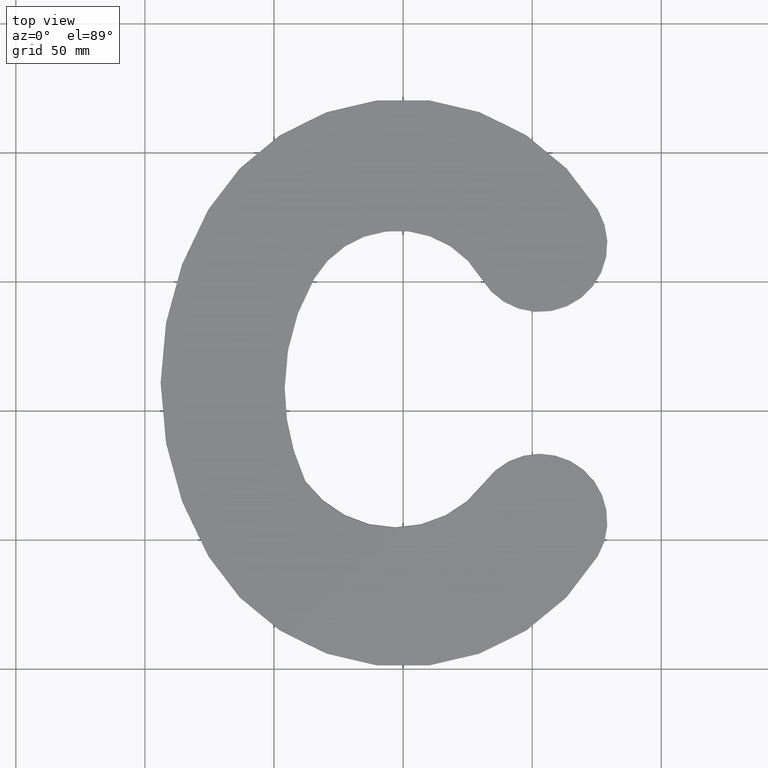
[diagram: clean part render]
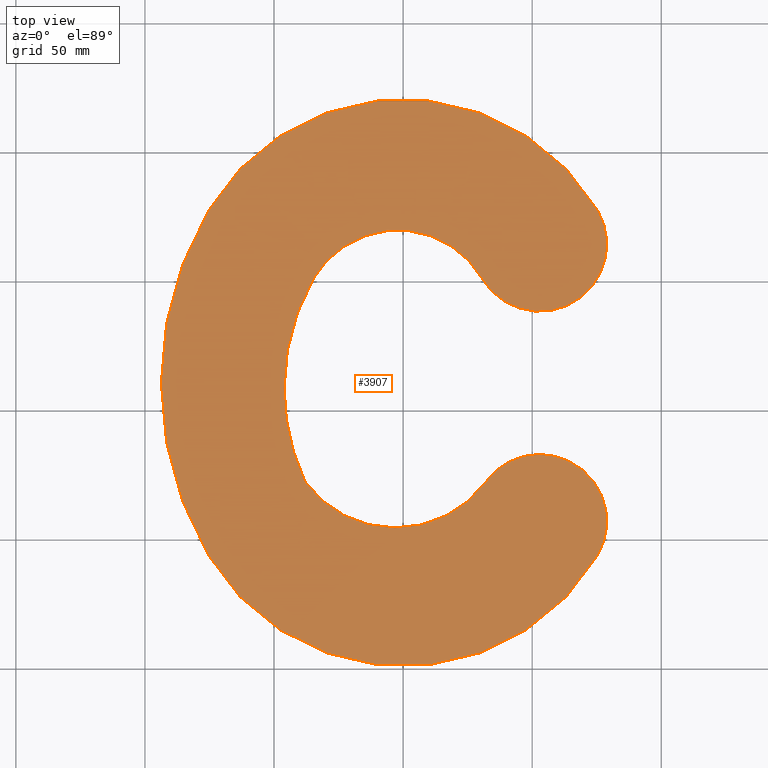
[diagram: same view with one face highlighted and labeled with its STEP entity id]
A machine part, top view. The second image highlights one B-rep face of the part: STEP entity #3907.
In plain terms, the highlighted planar face has unit normal (0, 0, -1).
Its self-contained STEP definition (entity closure, byte-faithful):
#242 = ORIENTED_EDGE ( 'NONE', *, *, #31432, .T. ) ;
#379 = VERTEX_POINT ( 'NONE', #5171 ) ;
#1008 = DIRECTION ( 'NONE',  ( -1.000000000000000000, 0.000000000000000000, 0.000000000000000000 ) ) ;
#1088 = CARTESIAN_POINT ( 'NONE',  ( 75.22679039033371851, 176.9581257782152193, 2.000000000000000000 ) ) ;
#1486 = CIRCLE ( 'NONE', #4063, 131.0189357043282996 ) ;
#1670 = CARTESIAN_POINT ( 'NONE',  ( 1.886394206557700430E-23, 132.2308783435891826, 2.000000000000000000 ) ) ;
#1741 = CIRCLE ( 'NONE', #14229, 87.51912165640983687 ) ;
#1767 = CARTESIAN_POINT ( 'NONE',  ( -2.972145870964818304, 96.94996473683926297, 2.000000000000000000 ) ) ;
#3575 = CARTESIAN_POINT ( 'NONE',  ( 38.80021723831813318, 107.9164540666654943, 2.000000000000000000 ) ) ;
#3907 = ADVANCED_FACE ( 'NONE', ( #27734 ), #18392, .F. ) ;
#4063 = AXIS2_PLACEMENT_3D ( 'NONE', #13169, #12926, #33735 ) ;
#4192 = DIRECTION ( 'NONE',  ( 0.000000000000000000, 0.000000000000000000, 1.000000000000000000 ) ) ;
#4312 = DIRECTION ( 'NONE',  ( -1.000000000000000000, 0.000000000000000000, 0.000000000000000000 ) ) ;
#4648 = DIRECTION ( 'NONE',  ( -1.000000000000000000, 9.514118203080518399E-16, 0.000000000000000000 ) ) ;
#5030 = ORIENTED_EDGE ( 'NONE', *, *, #20731, .T. ) ;
#5171 = CARTESIAN_POINT ( 'NONE',  ( 30.55105795348866593, 150.5545611256447387, 2.000000000000000000 ) ) ;
#6777 = AXIS2_PLACEMENT_3D ( 'NONE', #3575, #29973, #36237 ) ;
#7088 = VERTEX_POINT ( 'NONE', #1088 ) ;
#7469 = VERTEX_POINT ( 'NONE', #34651 ) ;
#8132 = EDGE_CURVE ( 'NONE', #28454, #16568, #1486, .T. ) ;
#8220 = CIRCLE ( 'NONE', #27320, 87.51912165640985108 ) ;
#10257 = CIRCLE ( 'NONE', #10416, 43.16518968500732711 ) ;
#10416 = AXIS2_PLACEMENT_3D ( 'NONE', #1767, #14152, #22741 ) ;
#10913 = ORIENTED_EDGE ( 'NONE', *, *, #8132, .T. ) ;
#11217 = AXIS2_PLACEMENT_3D ( 'NONE', #35628, #32816, #12101 ) ;
#11507 = EDGE_CURVE ( 'NONE', #29773, #21560, #21104, .T. ) ;
#12101 = DIRECTION ( 'NONE',  ( -1.000000000000000000, 0.000000000000000000, 0.000000000000000000 ) ) ;
#12142 = VERTEX_POINT ( 'NONE', #12395 ) ;
#12395 = CARTESIAN_POINT ( 'NONE',  ( -75.22679039033373272, 43.04187422178387123, 2.000000000000000000 ) ) ;
#12429 = DIRECTION ( 'NONE',  ( -1.000000000000000000, 0.000000000000000000, 0.000000000000000000 ) ) ;
#12894 = DIRECTION ( 'NONE',  ( -0.000000000000000000, 0.000000000000000000, -1.000000000000000000 ) ) ;
#12926 = DIRECTION ( 'NONE',  ( 0.000000000000000000, 0.000000000000000000, 1.000000000000000000 ) ) ;
#13169 = CARTESIAN_POINT ( 'NONE',  ( 37.39013065336894215, 109.9999999999995168, 2.000000000000000000 ) ) ;
#13533 = VERTEX_POINT ( 'NONE', #14988 ) ;
#14152 = DIRECTION ( 'NONE',  ( -0.000000000000000000, -0.000000000000000000, -1.000000000000000000 ) ) ;
#14200 = CARTESIAN_POINT ( 'NONE',  ( -46.12880505095913009, 107.9164540666654943, 2.000000000000000000 ) ) ;
#14229 = AXIS2_PLACEMENT_3D ( 'NONE', #18821, #4192, #4312 ) ;
#14875 = CIRCLE ( 'NONE', #11217, 84.92902228927725616 ) ;
#14988 = CARTESIAN_POINT ( 'NONE',  ( -38.09187791819754665, 71.85339083773426694, 2.000000000000000000 ) ) ;
#15442 = CARTESIAN_POINT ( 'NONE',  ( -2.049126755757200602, 131.4034222170904229, 2.000000000000000000 ) ) ;
#15681 = CIRCLE ( 'NONE', #21100, 25.94748539025162160 ) ;
#15855 = AXIS2_PLACEMENT_3D ( 'NONE', #19011, #12894, #36653 ) ;
#16209 = EDGE_CURVE ( 'NONE', #7088, #28454, #8220, .T. ) ;
#16568 = VERTEX_POINT ( 'NONE', #22155 ) ;
#16770 = CARTESIAN_POINT ( 'NONE',  ( 52.92370955878899963, 56.30251460974788102, 2.000000000000000000 ) ) ;
#17551 = ORIENTED_EDGE ( 'NONE', *, *, #36630, .T. ) ;
#17811 = ORIENTED_EDGE ( 'NONE', *, *, #16209, .T. ) ;
#18001 = DIRECTION ( 'NONE',  ( 0.000000000000000000, 0.000000000000000000, 1.000000000000000000 ) ) ;
#18392 = PLANE ( 'NONE',  #15855 ) ;
#18720 = ORIENTED_EDGE ( 'NONE', *, *, #11507, .T. ) ;
#18821 = CARTESIAN_POINT ( 'NONE',  ( 6.869576908259014508E-23, 87.76912165640986530, 2.000000000000000000 ) ) ;
#19011 = CARTESIAN_POINT ( 'NONE',  ( 26.46185477939450337, 147.9641818669201712, 2.000000000000000000 ) ) ;
#19013 = CARTESIAN_POINT ( 'NONE',  ( 31.93831302248339910, 71.56308898594139123, 2.000000000000000000 ) ) ;
#19757 = AXIS2_PLACEMENT_3D ( 'NONE', #15442, #29993, #32702 ) ;
#20275 = AXIS2_PLACEMENT_3D ( 'NONE', #35955, #24109, #12429 ) ;
#20731 = EDGE_CURVE ( 'NONE', #21560, #379, #34780, .T. ) ;
#21100 = AXIS2_PLACEMENT_3D ( 'NONE', #35399, #18001, #1008 ) ;
#21104 = CIRCLE ( 'NONE', #6777, 84.92902228927725616 ) ;
#21560 = VERTEX_POINT ( 'NONE', #37521 ) ;
#22102 = AXIS2_PLACEMENT_3D ( 'NONE', #16770, #34650, #25485 ) ;
#22155 = CARTESIAN_POINT ( 'NONE',  ( -93.62880505095935746, 109.9999999999995168, 2.000000000000000000 ) ) ;
#22629 = EDGE_LOOP ( 'NONE', ( #5030, #26306, #17811, #10913, #242, #32891, #17551, #29975, #36726, #18720 ) ) ;
#22741 = DIRECTION ( 'NONE',  ( -1.000000000000000000, 0.000000000000000000, 0.000000000000000000 ) ) ;
#23053 = EDGE_CURVE ( 'NONE', #13533, #29773, #14875, .T. ) ;
#24089 = VERTEX_POINT ( 'NONE', #19013 ) ;
#24109 = DIRECTION ( 'NONE',  ( 0.000000000000000000, 0.000000000000000000, 1.000000000000000000 ) ) ;
#24725 = EDGE_CURVE ( 'NONE', #379, #7088, #15681, .T. ) ;
#25485 = DIRECTION ( 'NONE',  ( -1.000000000000000000, 0.000000000000000000, 0.000000000000000000 ) ) ;
#26306 = ORIENTED_EDGE ( 'NONE', *, *, #24725, .T. ) ;
#27320 = AXIS2_PLACEMENT_3D ( 'NONE', #1670, #36812, #4648 ) ;
#27485 = CARTESIAN_POINT ( 'NONE',  ( -75.22679039033371851, 176.9581257782152193, 2.000000000000000000 ) ) ;
#27734 = FACE_OUTER_BOUND ( 'NONE', #22629, .T. ) ;
#28454 = VERTEX_POINT ( 'NONE', #27485 ) ;
#29773 = VERTEX_POINT ( 'NONE', #14200 ) ;
#29973 = DIRECTION ( 'NONE',  ( -0.000000000000000000, -0.000000000000000000, -1.000000000000000000 ) ) ;
#29975 = ORIENTED_EDGE ( 'NONE', *, *, #30078, .T. ) ;
#29993 = DIRECTION ( 'NONE',  ( -0.000000000000000000, -0.000000000000000000, -1.000000000000000000 ) ) ;
#30078 = EDGE_CURVE ( 'NONE', #24089, #13533, #10257, .T. ) ;
#31432 = EDGE_CURVE ( 'NONE', #16568, #12142, #33233, .T. ) ;
#32702 = DIRECTION ( 'NONE',  ( -1.000000000000000000, 0.000000000000000000, 0.000000000000000000 ) ) ;
#32816 = DIRECTION ( 'NONE',  ( -0.000000000000000000, -0.000000000000000000, -1.000000000000000000 ) ) ;
#32891 = ORIENTED_EDGE ( 'NONE', *, *, #34627, .T. ) ;
#33006 = CIRCLE ( 'NONE', #22102, 25.94748539025161449 ) ;
#33233 = CIRCLE ( 'NONE', #20275, 131.0189357043282996 ) ;
#33735 = DIRECTION ( 'NONE',  ( -1.000000000000000000, -8.473760061145723090E-16, 0.000000000000000000 ) ) ;
#34627 = EDGE_CURVE ( 'NONE', #12142, #7469, #1741, .T. ) ;
#34650 = DIRECTION ( 'NONE',  ( 0.000000000000000000, 0.000000000000000000, 1.000000000000000000 ) ) ;
#34651 = CARTESIAN_POINT ( 'NONE',  ( 75.22679039033369008, 43.04187422178380018, 2.000000000000000000 ) ) ;
#34780 = CIRCLE ( 'NONE', #19757, 37.80923385327572817 ) ;
#35399 = CARTESIAN_POINT ( 'NONE',  ( 52.92370955878900673, 163.6974853902511313, 2.000000000000000000 ) ) ;
#35628 = CARTESIAN_POINT ( 'NONE',  ( 38.80021723831813318, 107.9164540666654943, 2.000000000000000000 ) ) ;
#35955 = CARTESIAN_POINT ( 'NONE',  ( 37.39013065336894215, 109.9999999999995168, 2.000000000000000000 ) ) ;
#36237 = DIRECTION ( 'NONE',  ( -1.000000000000000000, 0.000000000000000000, 0.000000000000000000 ) ) ;
#36630 = EDGE_CURVE ( 'NONE', #7469, #24089, #33006, .T. ) ;
#36653 = DIRECTION ( 'NONE',  ( -1.000000000000000000, 0.000000000000000000, 0.000000000000000000 ) ) ;
#36726 = ORIENTED_EDGE ( 'NONE', *, *, #23053, .T. ) ;
#36812 = DIRECTION ( 'NONE',  ( 0.000000000000000000, 0.000000000000000000, 1.000000000000000000 ) ) ;
#37521 = CARTESIAN_POINT ( 'NONE',  ( -34.71852244980959057, 150.4362581781835217, 2.000000000000000000 ) ) ;